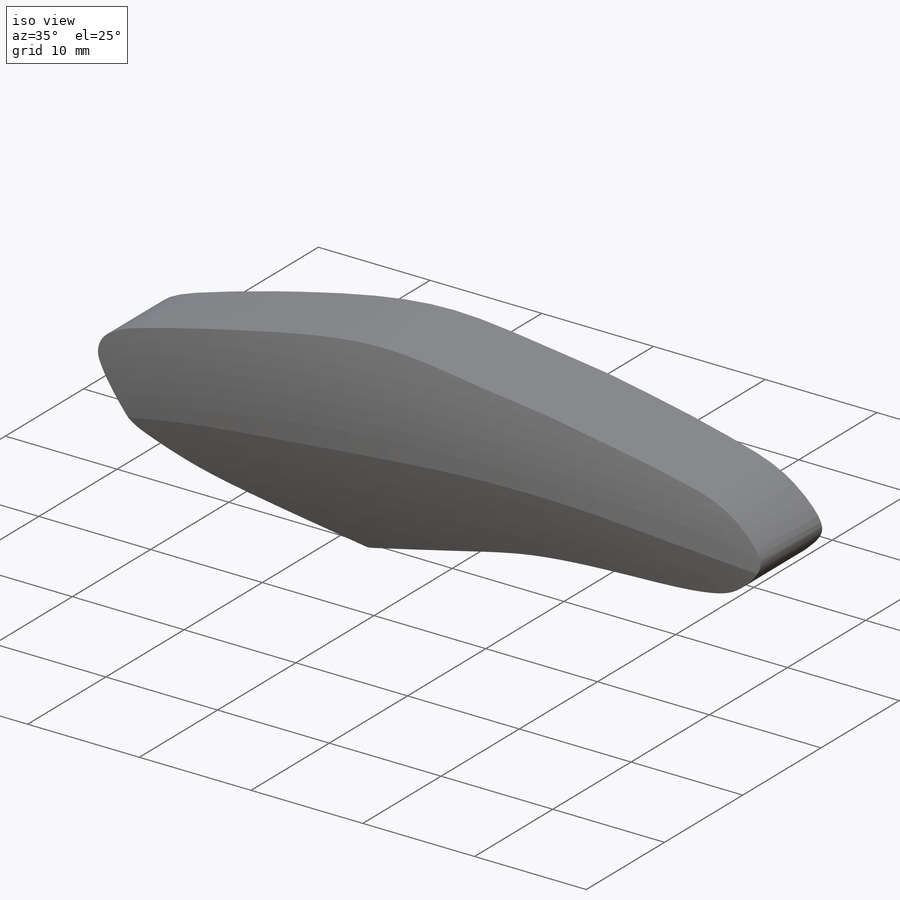
[diagram: iso view]
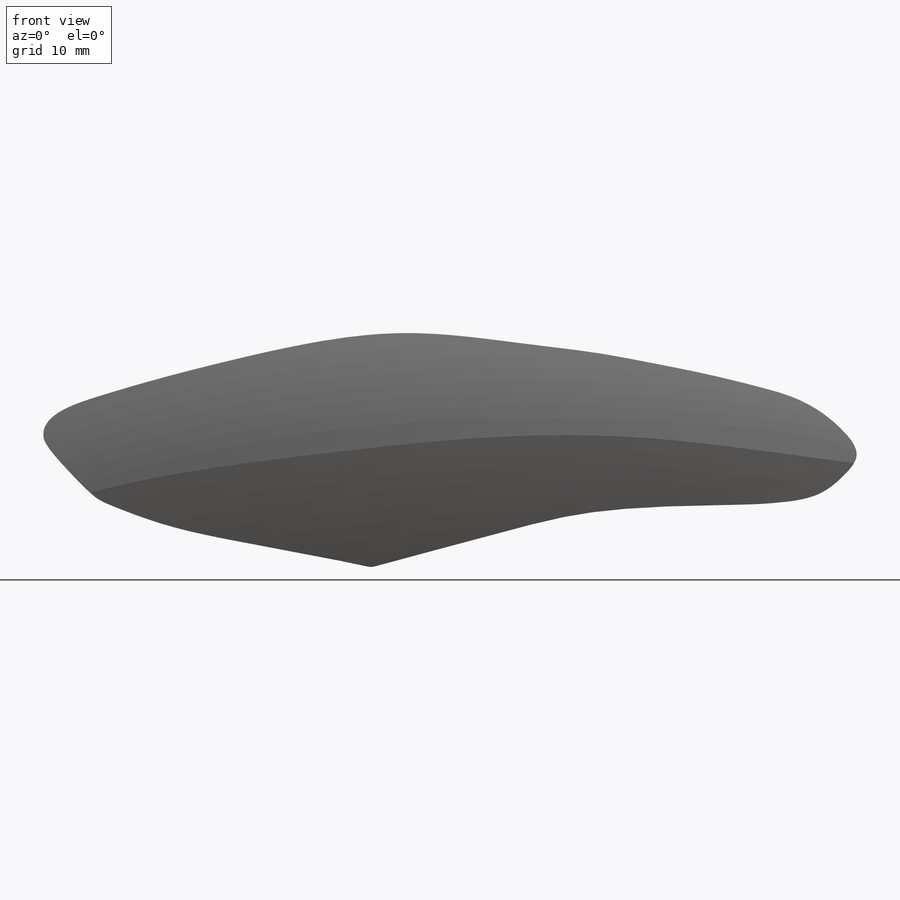
[diagram: front view]
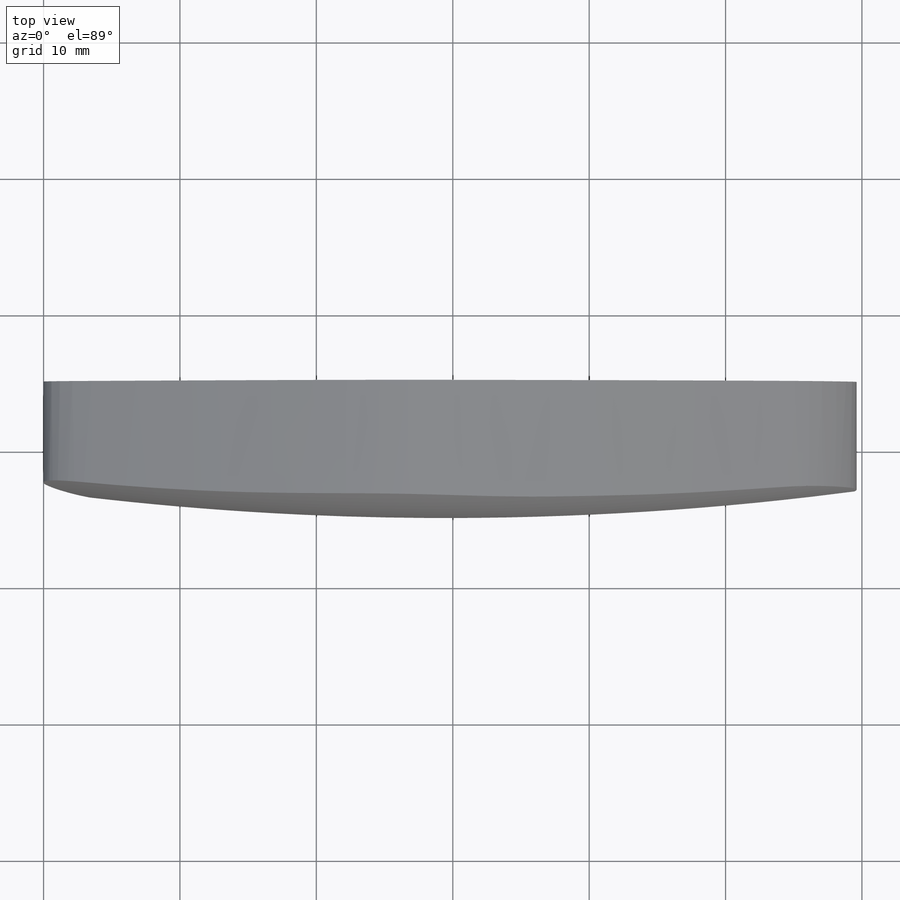
[diagram: top view]
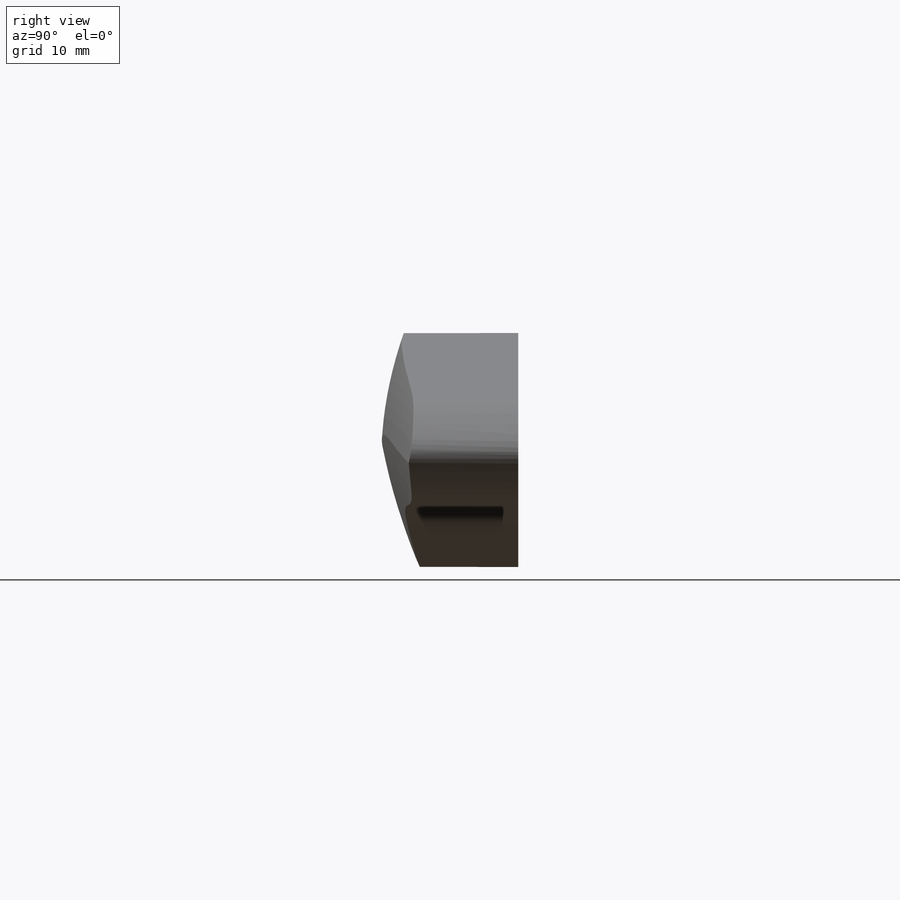
[diagram: right view]
SOLIDWORKS PART (.sldprt)
format: sldprt  version: not decoded by parser v0  size: 1,812,992 bytes
history: native  units: mm
features: sketch x9, plane x3, sweep x2, material x1, extrude x1, cut_extrude x1 (+12 scaffold rows collapsed)
feature tree (29):
  scaffold x12  (default folders/planes/origin — collapsed)
  material  "Material <not specified>"
  sketch  "Schita trouble maker"  dims[c1.D1=11.0mm c1.D2=60.0mm c2.D1=11.0mm c2.D2=60.0mm c3.D1=17.0mm]
  sketch  "Sketch2"
  extrude  "Boss-Extrude1"  Depth=10mm
  plane  "Plane2"  Offset=5mm
  sketch  "Sketch6"  dims[c1.D1=~278.763135mm c1.D5=223.0mm c2.D1=65.0mm c2.D2=32.5mm c2.D3=7.0mm c2.D4=6.0mm c3.D1=6.0mm c3.D2=65.0mm c3.D3=32.5mm c3.D4=7.0mm c3.D6=~5.992002mm]
  cut_extrude  "Cut-Extrude1"  Depth=10mm
  sketch  "Sketch3"  dims[D1=~3.798377mm]
  sketch  "3DSketch1"  dims[c1.D1=~65.874029mm c2.D1=~23.971351mm c3.D1=~74.831913mm c4.D1=~21.886687mm]
  plane  "Plane3"
  sketch  "Sketch8"  dims[D1=~3.130554mm]
  sweep  "Cut-Sweep4"
  sketch  "3DSketch2"
  plane  "Plane4"
  sketch  "Sketch10"  dims[D1=~1.668538mm]
  sweep  "Cut-Sweep5"
  sketch  "Sketch11"  dims[D1=~25.983142mm]
decode coverage: 9 of 13 modeling features carry decoded parameters
note: ~ marks probable driven/reference dimensions
note: suppression state not decoded; provenance and decode notes live in map.json
